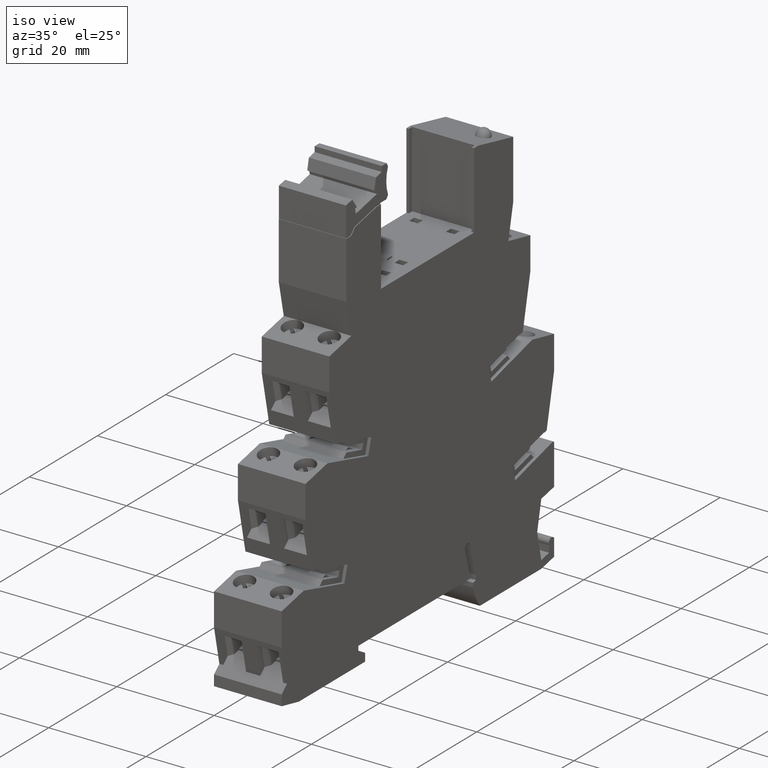
[diagram: clean part render]
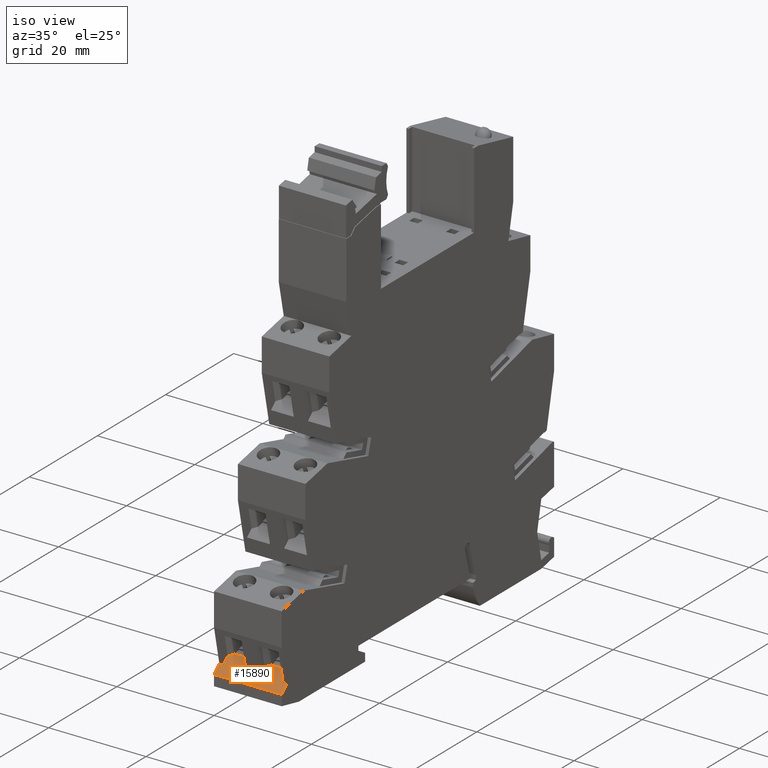
[diagram: same view with one face highlighted and labeled with its STEP entity id]
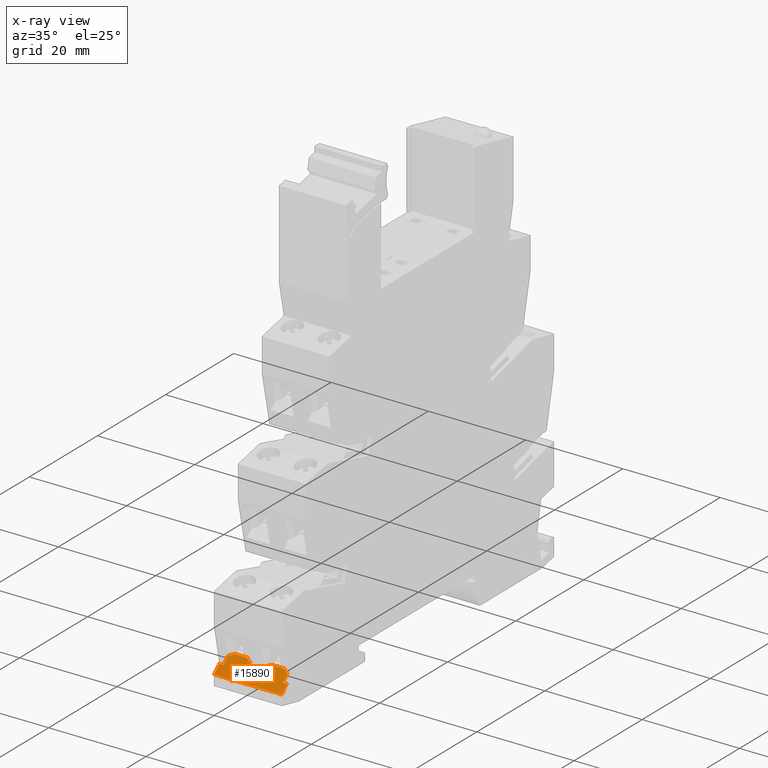
[diagram: x-ray of the same camera — body ghosted, the highlighted face saturated]
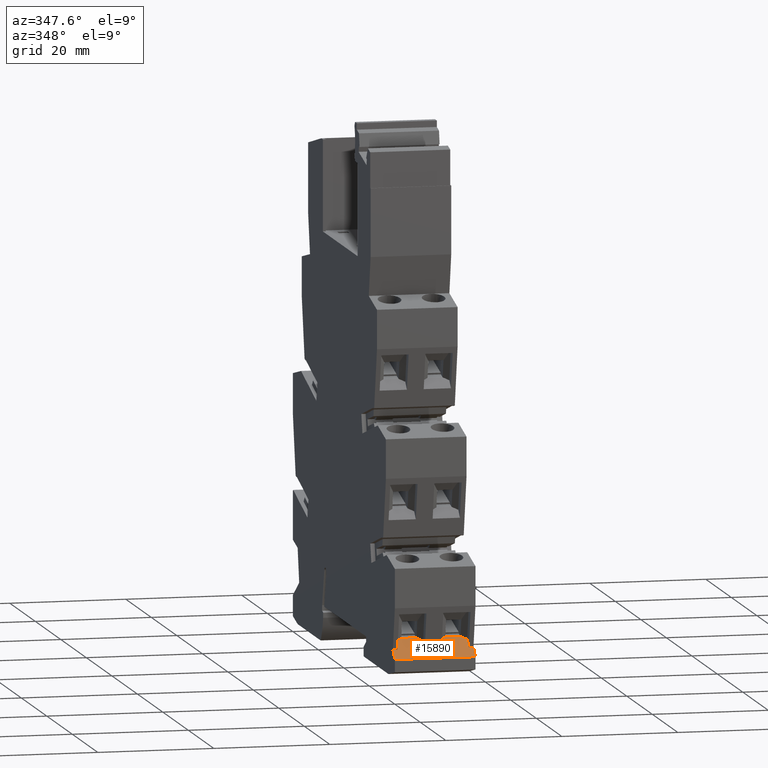
[diagram: same view with one face highlighted and labeled with its STEP entity id]
A machine part, iso view. The second image highlights one B-rep face of the part: STEP entity #15890.
The next image is the same camera in x-ray: the body ghosted, the highlighted face saturated — about 0% of this face is hidden behind the body in this view.
A second angle (auxiliary view) of the same face is appended — the face is thin or edge-on in the first view.
In plain terms, the highlighted planar face has unit normal (0, 0.6691, -0.7431).
Its self-contained STEP definition (entity closure, byte-faithful):
#60=CARTESIAN_POINT('',(13.9023606813626,21.4296458395496,
-14.7000000000029));
#70=DIRECTION('',(-0.743144825475685,0.669130606360757,
-1.13595970351826E-28));
#80=VECTOR('',#70,1.);
#90=LINE('',#60,#80);
#100=CARTESIAN_POINT('',(41.3071599999478,-3.24574630020197,
-14.7000000000051));
#110=VERTEX_POINT('',#100);
#120=CARTESIAN_POINT('',(39.7528218855743,-1.84621397580661,
-14.700000000005));
#130=VERTEX_POINT('',#120);
#140=EDGE_CURVE('',#110,#130,#90,.T.);
#8220=CARTESIAN_POINT('',(39.7528218855734,-1.84621397580662,
-0.800000000003119));
#8230=VERTEX_POINT('',#8220);
#8260=CARTESIAN_POINT('',(13.9023606813626,21.4296458395488,
-0.800000000002909));
#8270=DIRECTION('',(-0.743144825475685,0.669130606360757,
-1.13595970351826E-28));
#8280=VECTOR('',#8270,1.);
#8290=LINE('',#8260,#8280);
#8300=CARTESIAN_POINT('',(41.3071599999469,-3.24574630020197,
-0.800000000003128));
#8310=VERTEX_POINT('',#8300);
#8320=EDGE_CURVE('',#8310,#8230,#8290,.T.);
#14800=CARTESIAN_POINT('',(41.3071599999478,-3.24574630020196,
-14.7000000000008));
#14810=DIRECTION('',(-0.669130606360757,-0.743144825475685,
-4.20175175873503E-14));
#14820=DIRECTION('',(0.743144825475685,-0.669130606360757,
4.66651808743338E-14));
#14830=AXIS2_PLACEMENT_3D('',#14800,#14810,#14820);
#14840=PLANE('',#14830);
#14850=CARTESIAN_POINT('',(31.6007795779133,5.49391788733534,
0.0999999999958993));
#14860=DIRECTION('',(-0.409281597079666,0.368518805269057,
0.834675065193028));
#14870=VECTOR('',#14860,1.);
#14880=LINE('',#14850,#14870);
#14890=CARTESIAN_POINT('',(38.4656574184782,-0.687245883950917,
-13.9000000000051));
#14900=VERTEX_POINT('',#14890);
#14910=CARTESIAN_POINT('',(37.9507915804368,-0.223658601105647,
-12.8500000000071));
#14920=VERTEX_POINT('',#14910);
#14930=EDGE_CURVE('',#14900,#14920,#14880,.T.);
#14940=ORIENTED_EDGE('',*,*,#14930,.T.);
#14950=CARTESIAN_POINT('',(0.207621999998337,33.7604439339154,
-13.9000000000048));
#14960=DIRECTION('',(0.743144825475685,-0.669130606360757,
-4.74664427321232E-15));
#14970=VECTOR('',#14960,1.);
#14980=LINE('',#14950,#14970);
#14990=CARTESIAN_POINT('',(39.7528218855742,-1.84621397580661,
-13.9000000000051));
#15000=VERTEX_POINT('',#14990);
#15010=EDGE_CURVE('',#14900,#15000,#14980,.T.);
#15020=ORIENTED_EDGE('',*,*,#15010,.F.);
#15030=CARTESIAN_POINT('',(39.7528218855734,-1.84621397580661,
-0.800000000002907));
#15040=DIRECTION('',(-5.27068080343122E-14,4.7457423116369E-14,1.));
#15050=VECTOR('',#15040,1.);
#15060=LINE('',#15030,#15050);
#15070=EDGE_CURVE('',#130,#15000,#15060,.T.);
#15080=ORIENTED_EDGE('',*,*,#15070,.T.);
#15090=ORIENTED_EDGE('',*,*,#140,.T.);
#15100=CARTESIAN_POINT('',(41.3071599999469,-3.24574630020194,
-0.800000000002907));
#15110=DIRECTION('',(3.37001378710416E-27,5.65401468824772E-14,-1.));
#15120=VECTOR('',#15110,1.);
#15130=LINE('',#15100,#15120);
#15140=EDGE_CURVE('',#8310,#110,#15130,.T.);
#15150=ORIENTED_EDGE('',*,*,#15140,.T.);
#15160=ORIENTED_EDGE('',*,*,#8320,.F.);
#15170=CARTESIAN_POINT('',(39.7528218855737,-1.84621397580685,
-1.60000000001127));
#15180=VERTEX_POINT('',#15170);
#15190=EDGE_CURVE('',#15180,#8230,#15060,.T.);
#15200=ORIENTED_EDGE('',*,*,#15190,.T.);
#15210=CARTESIAN_POINT('',(0.207621999998569,33.7604439339147,
-1.60000000001102));
#15220=DIRECTION('',(0.743144825475685,-0.669130606360757,
-4.63562197074981E-15));
#15230=VECTOR('',#15220,1.);
#15240=LINE('',#15210,#15230);
#15250=CARTESIAN_POINT('',(38.4656574066976,-0.68724587334407,
-1.60000002402885));
#15260=VERTEX_POINT('',#15250);
#15270=EDGE_CURVE('',#15260,#15180,#15240,.T.);
#15280=ORIENTED_EDGE('',*,*,#15270,.T.);
#15290=CARTESIAN_POINT('',(43.0258976982821,-4.79330467487834,
7.69999999999695));
#15300=DIRECTION('',(0.409281597079648,-0.368518805269135,
0.834675065193002));
#15310=VECTOR('',#15300,1.);
#15320=LINE('',#15290,#15310);
#15330=CARTESIAN_POINT('',(37.9507915804362,-0.223658601105627,
-2.65000000000302));
#15340=VERTEX_POINT('',#15330);
#15350=EDGE_CURVE('',#15340,#15260,#15320,.T.);
#15360=ORIENTED_EDGE('',*,*,#15350,.T.);
#15370=CARTESIAN_POINT('',(37.9507915804367,-0.223658601105713,
0.099999999995347));
#15380=DIRECTION('',(-8.414627350377E-14,1.92254980932959E-14,1.));
#15390=VECTOR('',#15380,1.);
#15400=LINE('',#15370,#15390);
#15410=CARTESIAN_POINT('',(37.9507915804366,-0.223658601105717,
-5.25000000000507));
#15420=VERTEX_POINT('',#15410);
#15430=EDGE_CURVE('',#15420,#15340,#15400,.T.);
#15440=ORIENTED_EDGE('',*,*,#15430,.T.);
#15450=CARTESIAN_POINT('',(31.6007795779131,5.49391788733527,
7.69999999999794));
#15460=DIRECTION('',(-0.409281597079666,0.368518805269057,
0.834675065193028));
#15470=VECTOR('',#15460,1.);
#15480=LINE('',#15450,#15470);
#15490=CARTESIAN_POINT('',(38.465657418478,-0.687245883950988,
-6.30000000000303));
#15500=VERTEX_POINT('',#15490);
#15510=EDGE_CURVE('',#15500,#15420,#15480,.T.);
#15520=ORIENTED_EDGE('',*,*,#15510,.T.);
#15530=CARTESIAN_POINT('',(0.20762199999816,33.7604439339153,
-6.30000000000278));
#15540=DIRECTION('',(0.743144825475685,-0.669130606360757,
-4.74664427321232E-15));
#15550=VECTOR('',#15540,1.);
#15560=LINE('',#15530,#15550);
#15570=CARTESIAN_POINT('',(39.752821885574,-1.84621397580685,
-6.30000000000304));
#15580=VERTEX_POINT('',#15570);
#15590=EDGE_CURVE('',#15500,#15580,#15560,.T.);
#15600=ORIENTED_EDGE('',*,*,#15590,.F.);
#15610=CARTESIAN_POINT('',(39.7528218855739,-1.84621397580661,
-9.20000000001331));
#15620=VERTEX_POINT('',#15610);
#15630=EDGE_CURVE('',#15620,#15580,#15060,.T.);
#15640=ORIENTED_EDGE('',*,*,#15630,.T.);
#15650=CARTESIAN_POINT('',(0.207621999998746,33.7604439339147,
-9.20000000001307));
#15660=DIRECTION('',(0.743144825475685,-0.669130606360757,
-4.63562197074981E-15));
#15670=VECTOR('',#15660,1.);
#15680=LINE('',#15650,#15670);
#15690=CARTESIAN_POINT('',(38.4656574066977,-0.687245873343999,
-9.20000002403089));
#15700=VERTEX_POINT('',#15690);
#15710=EDGE_CURVE('',#15700,#15620,#15680,.T.);
#15720=ORIENTED_EDGE('',*,*,#15710,.T.);
#15730=CARTESIAN_POINT('',(43.0258976982822,-4.79330467487827,
0.0999999999949055));
#15740=DIRECTION('',(0.409281597079648,-0.368518805269135,
0.834675065193002));
#15750=VECTOR('',#15740,1.);
#15760=LINE('',#15730,#15750);
#15770=CARTESIAN_POINT('',(37.9507915804364,-0.223658601105558,
-10.2500000000051));
#15780=VERTEX_POINT('',#15770);
#15790=EDGE_CURVE('',#15780,#15700,#15760,.T.);
#15800=ORIENTED_EDGE('',*,*,#15790,.T.);
#15810=CARTESIAN_POINT('',(37.9507915804362,-0.223658601105495,
0.099999999995347));
#15820=DIRECTION('',(8.41462735037701E-14,-1.92254980932958E-14,-1.));
#15830=VECTOR('',#15820,1.);
#15840=LINE('',#15810,#15830);
#15850=EDGE_CURVE('',#15780,#14920,#15840,.T.);
#15860=ORIENTED_EDGE('',*,*,#15850,.F.);
#15870=EDGE_LOOP('',(#15860,#15800,#15720,#15640,#15600,#15520,#15440,
#15360,#15280,#15200,#15160,#15150,#15090,#15080,#15020,#14940));
#15880=FACE_OUTER_BOUND('',#15870,.T.);
#15890=ADVANCED_FACE('',(#15880),#14840,.F.);